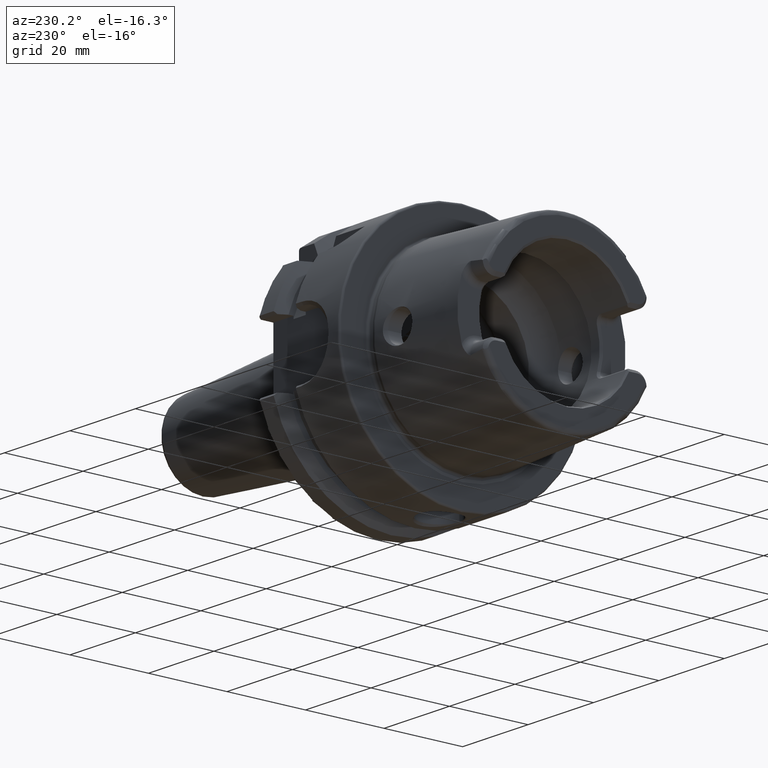
[diagram: clean part render]
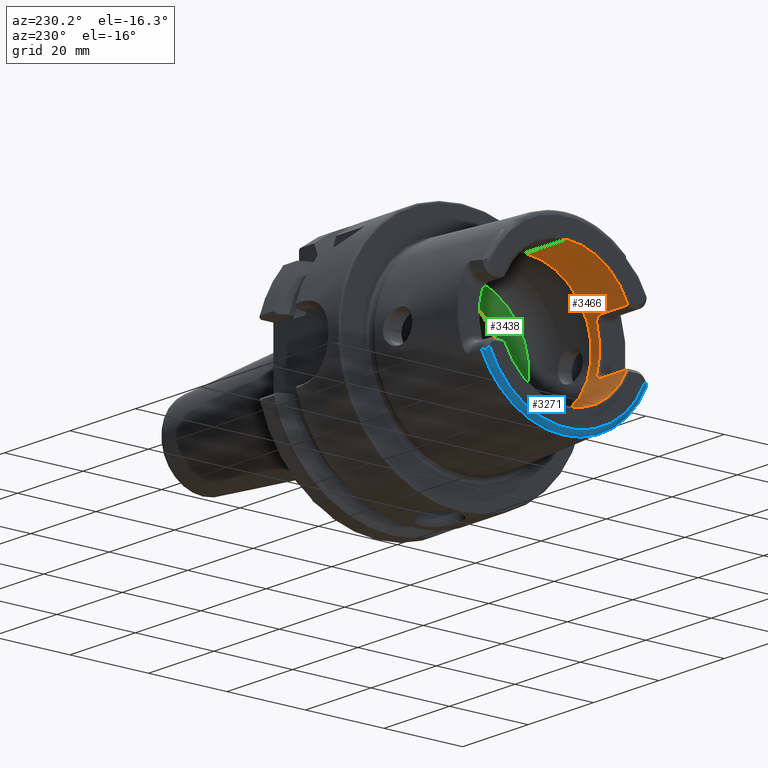
[diagram: same view with three faces highlighted in distinct colors, each labeled with its STEP entity id]
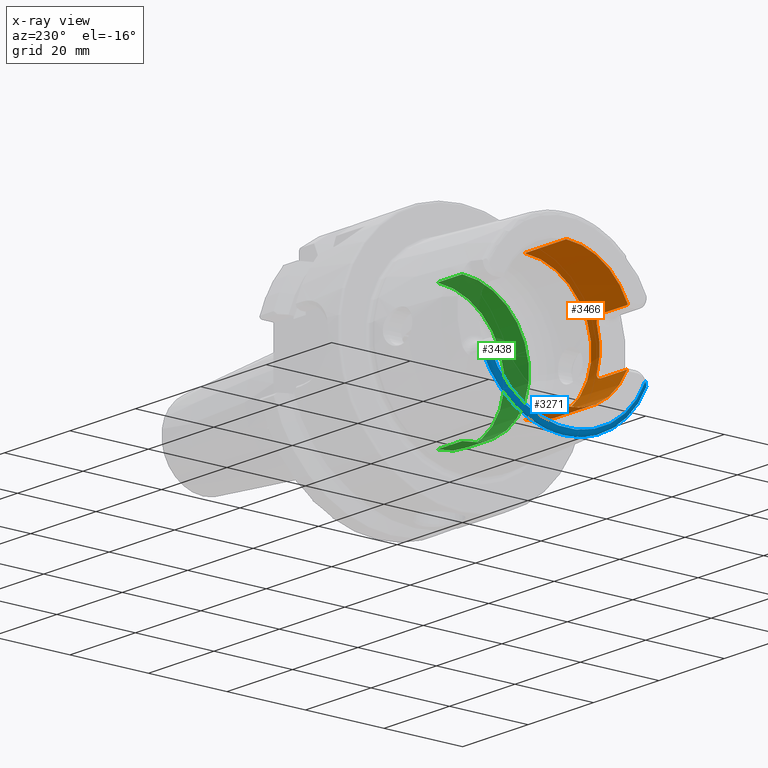
[diagram: x-ray of the same camera — body ghosted, the three highlighted faces saturated]
A machine part, auxiliary view with three faces highlighted in distinct colors.
The next image is the same camera in x-ray (body ghosted, the three faces saturated) — at least one of them is partly hidden behind the body in this view.
Their STEP definitions:

[orange] entity #3466 — the highlighted cylindrical surface (partial cylindrical patch) has radius 17 mm, axis along (1, 0, 0).
#272=CARTESIAN_POINT('',(-3.15E1,0.E0,0.E0));
#273=DIRECTION('',(1.E0,0.E0,0.E0));
#274=DIRECTION('',(0.E0,-9.221396591734E-1,-3.868571428571E-1));
#275=AXIS2_PLACEMENT_3D('',#272,#273,#274);
#277=DIRECTION('',(-1.E0,-6.903792289323E-9,3.402020068072E-11));
#278=VECTOR('',#277,1.250397459548E1);
#279=CARTESIAN_POINT('',(-1.899602540378E1,0.E0,-1.7E1));
#280=LINE('',#279,#278);
#281=CARTESIAN_POINT('',(-1.899602540378E1,0.E0,0.E0));
#282=DIRECTION('',(1.E0,0.E0,0.E0));
#283=DIRECTION('',(0.E0,0.E0,1.E0));
#284=AXIS2_PLACEMENT_3D('',#281,#282,#283);
#286=DIRECTION('',(-1.E0,2.385283683508E-9,-3.366909743156E-11));
#287=VECTOR('',#286,1.271529946137E1);
#288=CARTESIAN_POINT('',(-1.899602540378E1,0.E0,1.7E1));
#289=LINE('',#288,#287);
#290=CARTESIAN_POINT('',(-3.171132486541E1,0.E0,0.E0));
#291=DIRECTION('',(1.E0,0.E0,0.E0));
#292=DIRECTION('',(0.E0,0.E0,1.E0));
#293=AXIS2_PLACEMENT_3D('',#290,#291,#292);
#295=CARTESIAN_POINT('',(-3.171132486541E1,-1.558889454291E1,6.781324865405E0));
#296=CARTESIAN_POINT('',(-3.164317732329E1,-1.561853940455E1,6.713177323292E0));
#297=CARTESIAN_POINT('',(-3.157492591239E1,-1.564769805039E1,6.644925912391E0));
#298=CARTESIAN_POINT('',(-3.150657142857E1,-1.567637420595E1,6.576571428571E0));
#300=DIRECTION('',(-1.E0,7.806493534994E-11,1.337467313864E-10));
#301=VECTOR('',#300,8.006571291236E0);
#302=CARTESIAN_POINT('',(-2.350000013733E1,-1.567637420657E1,6.576571427501E0));
#303=LINE('',#302,#301);
#304=CARTESIAN_POINT('',(-2.149999999319E1,-1.635630409315E1,4.633715190920E0));
#305=CARTESIAN_POINT('',(-2.149837670162E1,-1.630683774285E1,4.808323859179E0));
#306=CARTESIAN_POINT('',(-2.154698674048E1,-1.620558232555E1,5.145031375457E0));
#307=CARTESIAN_POINT('',(-2.175634281348E1,-1.604191635076E1,5.633411327769E0));
#308=CARTESIAN_POINT('',(-2.209010361832E1,-1.589109359561E1,6.043372323205E0));
#309=CARTESIAN_POINT('',(-2.251604562885E1,-1.576970087508E1,6.351365719671E0));
#310=CARTESIAN_POINT('',(-2.300654217394E1,-1.569288971245E1,6.537435918996E0));
#311=CARTESIAN_POINT('',(-2.333316767882E1,-1.567591106793E1,6.577675397064E0));
#312=CARTESIAN_POINT('',(-2.350000013733E1,-1.567637420657E1,6.576571427501E0));
#314=CARTESIAN_POINT('',(-2.15E1,0.E0,0.E0));
#315=DIRECTION('',(-1.E0,0.E0,0.E0));
#316=DIRECTION('',(0.E0,-9.621355498715E-1,-2.725714285714E-1));
#317=AXIS2_PLACEMENT_3D('',#314,#315,#316);
#319=CARTESIAN_POINT('',(-2.349999986317E1,-1.567637420552E1,
-6.576571429211E0));
#320=CARTESIAN_POINT('',(-2.332970719140E1,-1.567611857761E1,
-6.577180761720E0));
#321=CARTESIAN_POINT('',(-2.299840942678E1,-1.569359910657E1,
-6.535750833257E0));
#322=CARTESIAN_POINT('',(-2.251183524324E1,-1.577082022066E1,
-6.348574599471E0));
#323=CARTESIAN_POINT('',(-2.208814623726E1,-1.589177064458E1,
-6.041605818138E0));
#324=CARTESIAN_POINT('',(-2.175385506539E1,-1.604330085675E1,
-5.629517468253E0));
#325=CARTESIAN_POINT('',(-2.154614938594E1,-1.620674011477E1,
-5.141319066030E0));
#326=CARTESIAN_POINT('',(-2.149842226301E1,-1.630728005799E1,
-4.806762546710E0));
#327=CARTESIAN_POINT('',(-2.150000000035E1,-1.635630437232E1,
-4.633714197965E0));
#329=DIRECTION('',(9.999999410129E-1,1.989017162463E-4,-2.800220290254E-4));
#330=VECTOR('',#329,8.002685056695E0);
#331=CARTESIAN_POINT('',(-3.150268444781E1,-1.567796595331E1,
-6.574330501103E0));
#332=LINE('',#331,#330);
#2719=CARTESIAN_POINT('',(-1.899602540378E1,0.E0,-1.7E1));
#2720=CARTESIAN_POINT('',(-1.899602540378E1,0.E0,1.7E1));
#2721=VERTEX_POINT('',#2719);
#2722=VERTEX_POINT('',#2720);
#2898=VERTEX_POINT('',#304);
#2899=VERTEX_POINT('',#312);
#2902=CARTESIAN_POINT('',(-2.15E1,-1.635630434782E1,-4.633714285714E0));
#2903=VERTEX_POINT('',#2902);
#2906=VERTEX_POINT('',#319);
#2934=CARTESIAN_POINT('',(-3.149999999926E1,-8.632484131625E-8,
-1.699999999957E1));
#2935=VERTEX_POINT('',#2934);
#2936=CARTESIAN_POINT('',(-3.171132486516E1,3.032959373375E-8,
1.699999999957E1));
#2937=VERTEX_POINT('',#2936);
#2956=VERTEX_POINT('',#295);
#2957=VERTEX_POINT('',#298);
#2976=CARTESIAN_POINT('',(-3.150268444781E1,-1.567796595331E1,
-6.574330501103E0));
#2977=VERTEX_POINT('',#2976);
#3439=CARTESIAN_POINT('',(0.E0,0.E0,0.E0));
#3440=DIRECTION('',(1.E0,0.E0,0.E0));
#3441=DIRECTION('',(0.E0,0.E0,1.E0));
#3442=AXIS2_PLACEMENT_3D('',#3439,#3440,#3441);
#3443=CYLINDRICAL_SURFACE('',#3442,1.7E1);
#3445=ORIENTED_EDGE('',*,*,#3444,.T.);
#3446=ORIENTED_EDGE('',*,*,#3420,.F.);
#3448=ORIENTED_EDGE('',*,*,#3447,.F.);
#3449=ORIENTED_EDGE('',*,*,#3416,.T.);
#3451=ORIENTED_EDGE('',*,*,#3450,.T.);
#3453=ORIENTED_EDGE('',*,*,#3452,.T.);
#3455=ORIENTED_EDGE('',*,*,#3454,.F.);
#3457=ORIENTED_EDGE('',*,*,#3456,.F.);
#3459=ORIENTED_EDGE('',*,*,#3458,.F.);
#3461=ORIENTED_EDGE('',*,*,#3460,.F.);
#3463=ORIENTED_EDGE('',*,*,#3462,.F.);
#3464=EDGE_LOOP('',(#3445,#3446,#3448,#3449,#3451,#3453,#3455,#3457,#3459,#3461,
#3463));
#3465=FACE_OUTER_BOUND('',#3464,.F.);
#3466=ADVANCED_FACE('',(#3465),#3443,.F.);
#276=CIRCLE('',#275,1.7E1);
#285=CIRCLE('',#284,1.7E1);
#294=CIRCLE('',#293,1.7E1);
#299=B_SPLINE_CURVE_WITH_KNOTS('',3,(#295,#296,#297,#298),.UNSPECIFIED.,.F.,.F.,
(4,4),(0.E0,1.E0),.UNSPECIFIED.);
#313=B_SPLINE_CURVE_WITH_KNOTS('',3,(#304,#305,#306,#307,#308,#309,#310,#311,
#312),.UNSPECIFIED.,.F.,.F.,(4,1,1,1,1,1,4),(0.E0,1.666666666667E-1,
3.333333333333E-1,5.E-1,6.666666666667E-1,8.333333333333E-1,1.E0),
.UNSPECIFIED.);
#318=CIRCLE('',#317,1.7E1);
#328=B_SPLINE_CURVE_WITH_KNOTS('',3,(#319,#320,#321,#322,#323,#324,#325,#326,
#327),.UNSPECIFIED.,.F.,.F.,(4,1,1,1,1,1,4),(0.E0,1.666666666667E-1,
3.333333333333E-1,5.E-1,6.666666666667E-1,8.333333333333E-1,1.E0),
.UNSPECIFIED.);
#3416=EDGE_CURVE('',#2722,#2937,#289,.T.);
#3420=EDGE_CURVE('',#2721,#2935,#280,.T.);
#3444=EDGE_CURVE('',#2977,#2935,#276,.T.);
#3447=EDGE_CURVE('',#2722,#2721,#285,.T.);
#3450=EDGE_CURVE('',#2937,#2956,#294,.T.);
#3452=EDGE_CURVE('',#2956,#2957,#299,.T.);
#3454=EDGE_CURVE('',#2899,#2957,#303,.T.);
#3456=EDGE_CURVE('',#2898,#2899,#313,.T.);
#3458=EDGE_CURVE('',#2903,#2898,#318,.T.);
#3460=EDGE_CURVE('',#2906,#2903,#328,.T.);
#3462=EDGE_CURVE('',#2977,#2906,#332,.T.);

[blue] entity #3271 — the highlighted toroidal blend (fillet) surface has major radius 21.5761 mm and minor (blend) radius 1.2 mm.
#2=CARTESIAN_POINT('',(-3.086004333271E1,0.E0,0.E0));
#3=DIRECTION('',(-1.E0,0.E0,0.E0));
#4=DIRECTION('',(0.E0,9.163649919573E-1,-4.003438540993E-1));
#5=AXIS2_PLACEMENT_3D('',#2,#3,#4);
#73=CARTESIAN_POINT('',(-3.2E1,1.990238974402E1,-8.331974653830E0));
#74=CARTESIAN_POINT('',(-3.2E1,1.992820404578E1,-8.392323646884E0));
#75=CARTESIAN_POINT('',(-3.199459482397E1,1.997824759926E1,-8.511050025282E0));
#76=CARTESIAN_POINT('',(-3.197018283958E1,2.005187318803E1,-8.689964576135E0));
#77=CARTESIAN_POINT('',(-3.193090615025E1,2.012146645820E1,-8.858427017470E0));
#78=CARTESIAN_POINT('',(-3.187770014986E1,2.018957491860E1,-9.011737174383E0));
#79=CARTESIAN_POINT('',(-3.181170470046E1,2.025931483277E1,-9.142036262052E0));
#80=CARTESIAN_POINT('',(-3.172519430663E1,2.034324279716E1,-9.244511180614E0));
#81=CARTESIAN_POINT('',(-3.162295502402E1,2.044322073957E1,-9.285994560789E0));
#82=CARTESIAN_POINT('',(-3.151629898383E1,2.055146680674E1,-9.261699484379E0));
#83=CARTESIAN_POINT('',(-3.140915347590E1,2.066103014214E1,-9.189133674289E0));
#84=CARTESIAN_POINT('',(-3.130930135160E1,2.076080858944E1,-9.092765783114E0));
#85=CARTESIAN_POINT('',(-3.123713506791E1,2.082969789126E1,-9.008814441803E0));
#86=CARTESIAN_POINT('',(-3.12E1,2.086388901270E1,-8.962484820140E0));
#88=CARTESIAN_POINT('',(-3.2E1,0.E0,0.E0));
#89=DIRECTION('',(-1.E0,0.E0,0.E0));
#90=DIRECTION('',(0.E0,9.224287428258E-1,-3.861673399044E-1));
#91=AXIS2_PLACEMENT_3D('',#88,#89,#90);
#93=CARTESIAN_POINT('',(-3.12E1,-2.086388901270E1,-8.962484820140E0));
#94=CARTESIAN_POINT('',(-3.123224973658E1,-2.083419592954E1,-9.002719514151E0));
#95=CARTESIAN_POINT('',(-3.129620781423E1,-2.077348032161E1,-9.078060961540E0));
#96=CARTESIAN_POINT('',(-3.139112717715E1,-2.067924288417E1,-9.173065271035E0));
#97=CARTESIAN_POINT('',(-3.149177258252E1,-2.057662536724E1,-9.247948063830E0));
#98=CARTESIAN_POINT('',(-3.159531222419E1,-2.047098041171E1,-9.285171175677E0));
#99=CARTESIAN_POINT('',(-3.170118305740E1,-2.036633756939E1,-9.261970852533E0));
#100=CARTESIAN_POINT('',(-3.179673840429E1,-2.027428746545E1,
-9.166736549867E0));
#101=CARTESIAN_POINT('',(-3.187255760131E1,-2.019571142228E1,
-9.025234320014E0));
#102=CARTESIAN_POINT('',(-3.192769354344E1,-2.012626637534E1,
-8.869730746078E0));
#103=CARTESIAN_POINT('',(-3.196904164143E1,-2.005474275626E1,
-8.697024160456E0));
#104=CARTESIAN_POINT('',(-3.199436015843E1,-1.997975843364E1,
-8.514643442228E0));
#105=CARTESIAN_POINT('',(-3.2E1,-1.992871668258E1,-8.393522095532E0));
#106=CARTESIAN_POINT('',(-3.2E1,-1.990238974402E1,-8.331974653830E0));
#133=CARTESIAN_POINT('',(-3.086004333271E1,2.086981840766E1,-9.117659021249E0));
#134=CARTESIAN_POINT('',(-3.091977448942E1,2.086973656852E1,-9.110371614340E0));
#135=CARTESIAN_POINT('',(-3.103604609358E1,2.086935448812E1,-9.074343423164E0));
#136=CARTESIAN_POINT('',(-3.114561092580E1,2.086664870955E1,-9.004780395645E0));
#137=CARTESIAN_POINT('',(-3.12E1,2.086388901270E1,-8.962484820140E0));
#1207=CARTESIAN_POINT('',(-3.086004333271E1,0.E0,0.E0));
#1208=DIRECTION('',(-1.E0,0.E0,0.E0));
#1209=DIRECTION('',(0.E0,0.E0,-1.E0));
#1210=AXIS2_PLACEMENT_3D('',#1207,#1208,#1209);
#1352=CARTESIAN_POINT('',(-3.12E1,-2.086388901270E1,-8.962484820140E0));
#1353=CARTESIAN_POINT('',(-3.114507267401E1,-2.086667602040E1,
-9.005198966284E0));
#1354=CARTESIAN_POINT('',(-3.103474030192E1,-2.086936634510E1,
-9.074985399244E0));
#1355=CARTESIAN_POINT('',(-3.091910774221E1,-2.086973748204E1,
-9.110452959797E0));
#1356=CARTESIAN_POINT('',(-3.086004333271E1,-2.086981840766E1,
-9.117659021249E0));
#2938=CARTESIAN_POINT('',(-3.086004333271E1,0.E0,-2.277456973022E1));
#2939=CARTESIAN_POINT('',(-3.086004333271E1,-2.086981840766E1,
-9.117659021249E0));
#2940=VERTEX_POINT('',#2938);
#2941=VERTEX_POINT('',#2939);
#2942=CARTESIAN_POINT('',(-3.086004333271E1,2.086981840766E1,
-9.117659021249E0));
#2943=VERTEX_POINT('',#2942);
#2970=CARTESIAN_POINT('',(-3.2E1,-1.990238974402E1,-8.331974653830E0));
#2971=VERTEX_POINT('',#2970);
#2974=CARTESIAN_POINT('',(-3.12E1,-2.086388901270E1,-8.962484820140E0));
#2975=VERTEX_POINT('',#2974);
#2998=CARTESIAN_POINT('',(-3.2E1,1.990238974402E1,-8.331974653830E0));
#2999=VERTEX_POINT('',#2998);
#3002=CARTESIAN_POINT('',(-3.12E1,2.086388901270E1,-8.962484820140E0));
#3003=VERTEX_POINT('',#3002);
#3251=CARTESIAN_POINT('',(-3.08E1,0.E0,0.E0));
#3252=DIRECTION('',(1.E0,0.E0,0.E0));
#3253=DIRECTION('',(0.E0,1.014813229860E-2,-9.999485063796E-1));
#3254=AXIS2_PLACEMENT_3D('',#3251,#3252,#3253);
#3255=TOROIDAL_SURFACE('',#3254,2.157607283902E1,1.2E0);
#3257=ORIENTED_EDGE('',*,*,#3256,.F.);
#3259=ORIENTED_EDGE('',*,*,#3258,.T.);
#3261=ORIENTED_EDGE('',*,*,#3260,.F.);
#3263=ORIENTED_EDGE('',*,*,#3262,.T.);
#3265=ORIENTED_EDGE('',*,*,#3264,.F.);
#3266=ORIENTED_EDGE('',*,*,#3222,.F.);
#3268=ORIENTED_EDGE('',*,*,#3267,.T.);
#3269=EDGE_LOOP('',(#3257,#3259,#3261,#3263,#3265,#3266,#3268));
#3270=FACE_OUTER_BOUND('',#3269,.F.);
#3271=ADVANCED_FACE('',(#3270),#3255,.T.);
#6=CIRCLE('',#5,2.277456973022E1);
#87=B_SPLINE_CURVE_WITH_KNOTS('',3,(#73,#74,#75,#76,#77,#78,#79,#80,#81,#82,#83,
#84,#85,#86),.UNSPECIFIED.,.F.,.F.,(4,1,1,1,1,1,1,1,1,1,1,4),(0.E0,
9.090909090909E-2,1.818181818182E-1,2.727272727273E-1,3.636363636364E-1,
4.545454545455E-1,5.454545454545E-1,6.363636363636E-1,7.272727272727E-1,
8.181818181818E-1,9.090909090909E-1,1.E0),.UNSPECIFIED.);
#92=CIRCLE('',#91,2.157607283902E1);
#107=B_SPLINE_CURVE_WITH_KNOTS('',3,(#93,#94,#95,#96,#97,#98,#99,#100,#101,#102,
#103,#104,#105,#106),.UNSPECIFIED.,.F.,.F.,(4,1,1,1,1,1,1,1,1,1,1,4),(0.E0,
9.090909090909E-2,1.818181818182E-1,2.727272727273E-1,3.636363636364E-1,
4.545454545455E-1,5.454545454545E-1,6.363636363636E-1,7.272727272727E-1,
8.181818181818E-1,9.090909090909E-1,1.E0),.UNSPECIFIED.);
#138=B_SPLINE_CURVE_WITH_KNOTS('',3,(#133,#134,#135,#136,#137),.UNSPECIFIED.,
.F.,.F.,(4,1,4),(0.E0,5.E-1,1.E0),.UNSPECIFIED.);
#1211=CIRCLE('',#1210,2.277456973022E1);
#1357=B_SPLINE_CURVE_WITH_KNOTS('',3,(#1352,#1353,#1354,#1355,#1356),
.UNSPECIFIED.,.F.,.F.,(4,1,4),(0.E0,5.E-1,1.E0),.UNSPECIFIED.);
#3222=EDGE_CURVE('',#2943,#2940,#6,.T.);
#3256=EDGE_CURVE('',#2999,#3003,#87,.T.);
#3258=EDGE_CURVE('',#2999,#2971,#92,.T.);
#3260=EDGE_CURVE('',#2975,#2971,#107,.T.);
#3262=EDGE_CURVE('',#2975,#2941,#1357,.T.);
#3264=EDGE_CURVE('',#2940,#2941,#1211,.T.);
#3267=EDGE_CURVE('',#2943,#3003,#138,.T.);

[green] entity #3438 — the highlighted cylindrical surface (partial cylindrical patch) has radius 17 mm, axis along (1, 0, 0).
#254=DIRECTION('',(-1.E0,0.E0,0.E0));
#255=VECTOR('',#254,7.579836946705E0);
#256=CARTESIAN_POINT('',(7.670843802411E0,0.E0,-1.7E1));
#257=LINE('',#256,#255);
#258=CARTESIAN_POINT('',(7.670843802411E0,0.E0,0.E0));
#259=DIRECTION('',(1.E0,0.E0,0.E0));
#260=DIRECTION('',(0.E0,0.E0,1.E0));
#261=AXIS2_PLACEMENT_3D('',#258,#259,#260);
#263=DIRECTION('',(-1.E0,0.E0,0.E0));
#264=VECTOR('',#263,7.579836946705E0);
#265=CARTESIAN_POINT('',(7.670843802411E0,0.E0,1.7E1));
#266=LINE('',#265,#264);
#267=CARTESIAN_POINT('',(9.100685570619E-2,0.E0,0.E0));
#268=DIRECTION('',(1.E0,0.E0,0.E0));
#269=DIRECTION('',(0.E0,0.E0,1.E0));
#270=AXIS2_PLACEMENT_3D('',#267,#268,#269);
#2723=CARTESIAN_POINT('',(9.100685570619E-2,0.E0,-1.7E1));
#2724=CARTESIAN_POINT('',(9.100685570619E-2,0.E0,1.7E1));
#2725=VERTEX_POINT('',#2723);
#2726=VERTEX_POINT('',#2724);
#2731=CARTESIAN_POINT('',(7.670843802411E0,0.E0,-1.7E1));
#2732=VERTEX_POINT('',#2731);
#2733=CARTESIAN_POINT('',(7.670843802411E0,0.E0,1.7E1));
#2734=VERTEX_POINT('',#2733);
#3425=CARTESIAN_POINT('',(0.E0,0.E0,0.E0));
#3426=DIRECTION('',(1.E0,0.E0,0.E0));
#3427=DIRECTION('',(0.E0,0.E0,1.E0));
#3428=AXIS2_PLACEMENT_3D('',#3425,#3426,#3427);
#3429=CYLINDRICAL_SURFACE('',#3428,1.7E1);
#3430=ORIENTED_EDGE('',*,*,#3385,.F.);
#3432=ORIENTED_EDGE('',*,*,#3431,.F.);
#3433=ORIENTED_EDGE('',*,*,#3389,.T.);
#3435=ORIENTED_EDGE('',*,*,#3434,.T.);
#3436=EDGE_LOOP('',(#3430,#3432,#3433,#3435));
#3437=FACE_OUTER_BOUND('',#3436,.F.);
#3438=ADVANCED_FACE('',(#3437),#3429,.F.);
#262=CIRCLE('',#261,1.7E1);
#271=CIRCLE('',#270,1.7E1);
#3385=EDGE_CURVE('',#2732,#2725,#257,.T.);
#3389=EDGE_CURVE('',#2734,#2726,#266,.T.);
#3431=EDGE_CURVE('',#2734,#2732,#262,.T.);
#3434=EDGE_CURVE('',#2726,#2725,#271,.T.);